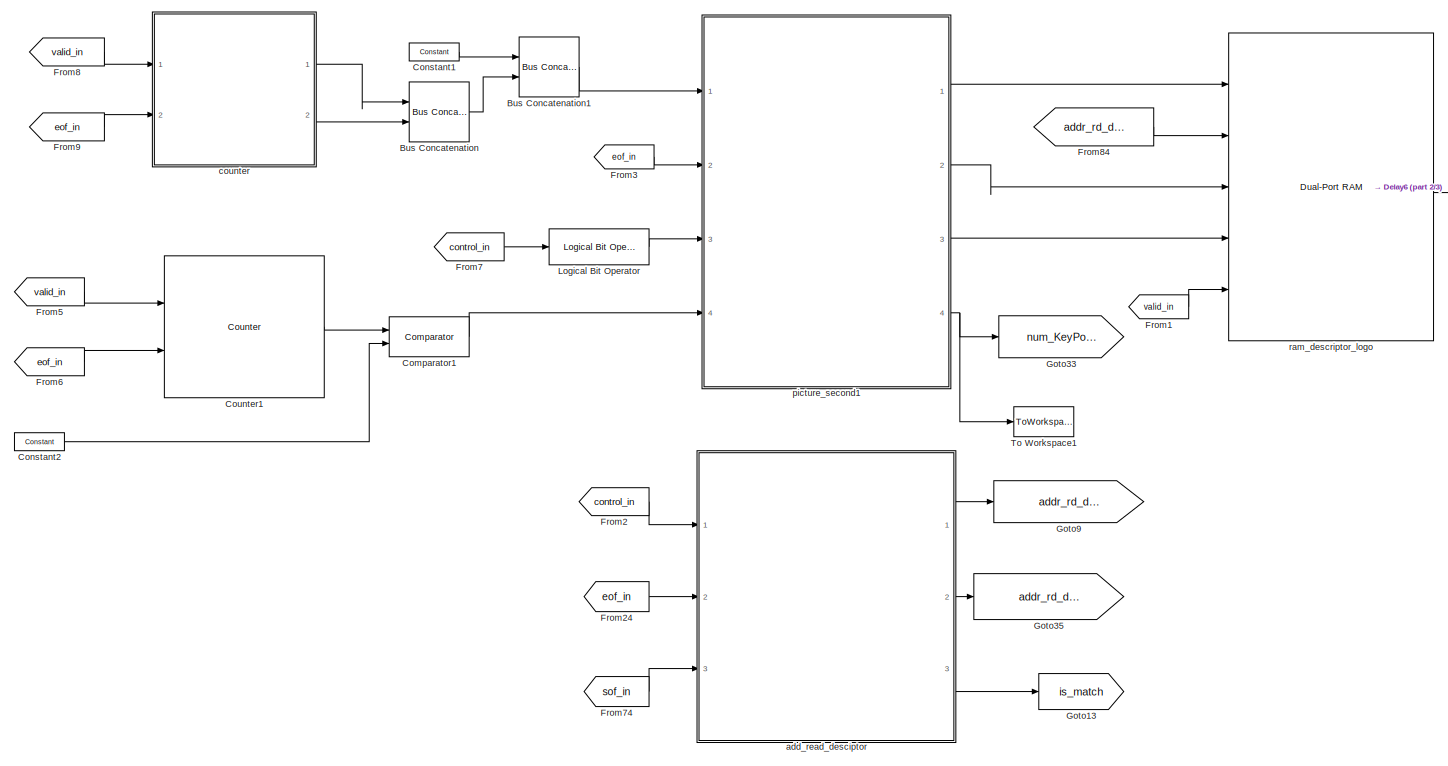
[diagram: root canvas - part 1/3, center side, full height]
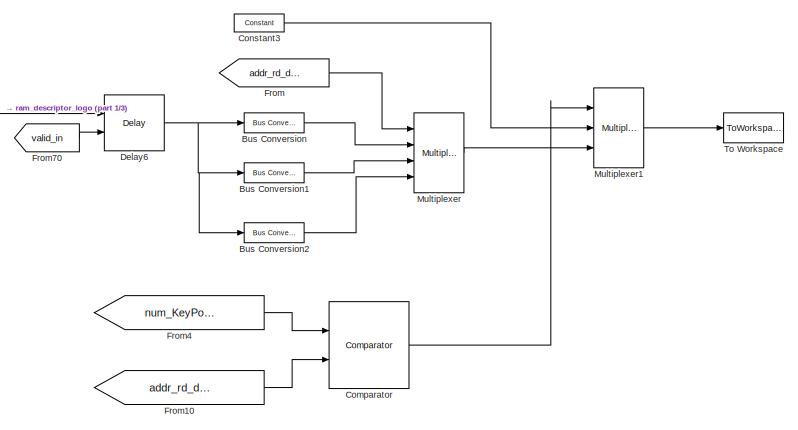
[diagram: root canvas - part 2/3, middle right region]
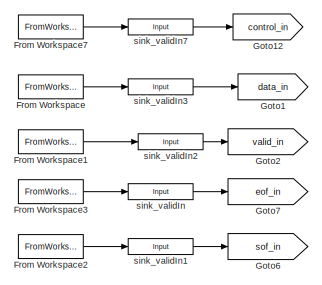
[diagram: root canvas - part 3/3, top left region]
MODEL slx_46d6f0b68bdf
KIND model
CONFIG AbsTol = auto
CONFIG FixedStep = auto
CONFIG InitFcn = %% DSPBuilder Start\nalt_dspbuilder_update_model(bdroot)\n%% DSPBuilder End\n
CONFIG MaxStep = auto
CONFIG MinStep = auto
CONFIG RelTol = 1e-3
CONFIG SampleTimeConstraint = Unconstrained
CONFIG Solver = ode45
CONFIG SolverMode = Auto
CONFIG SolverName = ode45
CONFIG StartTime = 0.0
CONFIG StopTime = 480*640 *2 + 10000
BLOCK [Reference] Bus Concatenation  REF=allblocks_alteradspbuilder2/Bus Concatenation
  Ports = [2, 1]
  SourceBlock = allblocks_alteradspbuilder2/Bus Concatenation
  SourceType = Bus Concatenate AlteraBlockset
  awidth = 32
  bwidth = 32
  isSigned = off
  pipeline_display = 0
BLOCK [Reference] Bus Concatenation1  REF=allblocks_alteradspbuilder2/Bus Concatenation
  Ports = [2, 1]
  SourceBlock = allblocks_alteradspbuilder2/Bus Concatenation
  SourceType = Bus Concatenate AlteraBlockset
  awidth = 32
  bwidth = 64
  isSigned = off
  pipeline_display = 0
BLOCK [Reference] Bus Conversion  REF=allblocks_alteradspbuilder2/Bus Conversion
  BusType = Unsigned Integer
  Ports = [1, 1]
  SourceBlock = allblocks_alteradspbuilder2/Bus Conversion
  SourceType = Bus Conversion AlteraBlockset
  bitToConnectToOutputLSB = 64
  bwl = 32
  bwr = 1
  ibwl = 96
  ibwr = 1
  pipeline_display = 0
  round = off
  saturate = off
BLOCK [Reference] Bus Conversion1  REF=allblocks_alteradspbuilder2/Bus Conversion
  BusType = Unsigned Integer
  Ports = [1, 1]
  SourceBlock = allblocks_alteradspbuilder2/Bus Conversion
  SourceType = Bus Conversion AlteraBlockset
  bitToConnectToOutputLSB = 32
  bwl = 32
  bwr = 1
  ibwl = 96
  ibwr = 1
  pipeline_display = 0
  round = off
  saturate = off
BLOCK [Reference] Bus Conversion2  REF=allblocks_alteradspbuilder2/Bus Conversion
  BusType = Unsigned Integer
  Ports = [1, 1]
  SourceBlock = allblocks_alteradspbuilder2/Bus Conversion
  SourceType = Bus Conversion AlteraBlockset
  bitToConnectToOutputLSB = 0
  bwl = 32
  bwr = 1
  ibwl = 96
  ibwr = 1
  pipeline_display = 0
  round = off
  saturate = off
BLOCK [Reference] Comparator  REF=allblocks_alteradspbuilder2/Comparator
  Ports = [2, 1]
  SourceBlock = allblocks_alteradspbuilder2/Comparator
  SourceType = Comparator AlteraBlockset
  allowFloatingPointOverride = on
  direction = a >= b
  logFile = <userpath>\Desktop\final_sift_fpga\tb_Ram_des\Ram%5Fdes_Comparator.fixedpointlog
  logOutputs = off
  pipeline_display = 0
BLOCK [Reference] Comparator1  REF=allblocks_alteradspbuilder2/Comparator
  Ports = [2, 1]
  SourceBlock = allblocks_alteradspbuilder2/Comparator
  SourceType = Comparator AlteraBlockset
  allowFloatingPointOverride = on
  direction = a == b
  logFile = <userpath>\Desktop\final_sift_fpga\tb_Ram_des\Ram%5Fdes_Comparator1.fixedpointlog
  logOutputs = off
  pipeline_display = 0
BLOCK [Reference] Constant1  REF=allblocks_alteradspbuilder2/Constant
  BusType = Unsigned Integer
  Ports = [0, 1]
  SourceBlock = allblocks_alteradspbuilder2/Constant
  SourceType = Constant AlteraBlockset
  SpecifyClock = off
  allowFloatingPointOverride = on
  bwl = 32
  bwr = 0
  logFile = <userpath>\Desktop\final_sift_fpga\tb_Ram_des\Ram%5Fdes_Constant1.fixedpointlog
  logOutputs = off
  mask_cst = 1998
  roundMode = Truncate
  satMode = Wrap
BLOCK [Reference] Constant2  REF=allblocks_alteradspbuilder2/Constant
  BusType = Unsigned Integer
  Ports = [0, 1]
  SourceBlock = allblocks_alteradspbuilder2/Constant
  SourceType = Constant AlteraBlockset
  SpecifyClock = off
  allowFloatingPointOverride = on
  bwl = 20
  bwr = 0
  logFile = <userpath>\Desktop\final_sift_fpga\tb_Ram_des\Ram%5Fdes_Constant2.fixedpointlog
  logOutputs = off
  mask_cst = 9999
  roundMode = Truncate
  satMode = Wrap
BLOCK [Reference] Constant3  REF=allblocks_alteradspbuilder2/Constant
  BusType = Unsigned Integer
  Ports = [0, 1]
  SourceBlock = allblocks_alteradspbuilder2/Constant
  SourceType = Constant AlteraBlockset
  SpecifyClock = off
  allowFloatingPointOverride = on
  bwl = 32
  bwr = 0
  logFile = <userpath>\Desktop\final_sift_fpga\tb_Ram_des\Ram%5Fdes_Constant3.fixedpointlog
  logOutputs = off
  mask_cst = 0
  roundMode = Truncate
  satMode = Wrap
BLOCK [Reference] Counter1  REF=allblocks_alteradspbuilder2/Counter
  BusType = Unsigned Integer
  Ports = [2, 1]
  SourceBlock = allblocks_alteradspbuilder2/Counter
  SourceType = Counter AlteraBlockset
  SpecifyClock = off
  bwl = 20
  bwr = 0
  direction = Increment
  modulo = 10000
  pipeline_display = 1
  svalue = 1
  use_clk_ena = off
  use_ena = on
  use_modulo = on
  use_sclr = on
  use_sload = off
  use_sset = off
BLOCK [Reference] Delay6  REF=allblocks_alteradspbuilder2/Delay
  ClockPhase = 1
  Ports = [2, 1]
  SourceBlock = allblocks_alteradspbuilder2/Delay
  SourceType = Delay AlteraBlockset
  allowFloatingPointOverride = on
  logFile = <userpath>\Desktop\final_sift_fpga\tb_Ram_des\Ram%5Fdes_Delay6.fixedpointlog
  logOutputs = off
  pipeline = 1
  pipeline_display = 1
  reset_value = 1
  use_ena = on
  use_init = off
  use_sclr = off
BLOCK [From] From
  GotoTag = addr_rd_des_logo
BLOCK [FromWorkspace] From Workspace
  SampleTime = 0
  VariableName = pixel_in
  ZeroCross = on
BLOCK [FromWorkspace] From Workspace1
  SampleTime = 0
  VariableName = valid_in
  ZeroCross = on
BLOCK [FromWorkspace] From Workspace2
  SampleTime = 0
  VariableName = sof_in
  ZeroCross = on
BLOCK [FromWorkspace] From Workspace3
  SampleTime = 0
  VariableName = eof_in
  ZeroCross = on
BLOCK [FromWorkspace] From Workspace7
  SampleTime = 0
  VariableName = control_in
  ZeroCross = on
BLOCK [From] From1
  GotoTag = valid_in
BLOCK [From] From10
  GotoTag = addr_rd_des
BLOCK [From] From2
  GotoTag = control_in
BLOCK [From] From24
  GotoTag = eof_in
BLOCK [From] From3
  GotoTag = eof_in
BLOCK [From] From4
  GotoTag = num_KeyPoint_logo
BLOCK [From] From5
  GotoTag = valid_in
BLOCK [From] From6
  GotoTag = eof_in
BLOCK [From] From7
  GotoTag = control_in
BLOCK [From] From70
  GotoTag = valid_in
BLOCK [From] From74
  GotoTag = sof_in
BLOCK [From] From8
  GotoTag = valid_in
BLOCK [From] From84
  GotoTag = addr_rd_des
BLOCK [From] From9
  GotoTag = eof_in
BLOCK [Goto] Goto1
  GotoTag = data_in
BLOCK [Goto] Goto12
  GotoTag = control_in
BLOCK [Goto] Goto13
  GotoTag = is_match
BLOCK [Goto] Goto2
  GotoTag = valid_in
BLOCK [Goto] Goto33
  GotoTag = num_KeyPoint_logo
BLOCK [Goto] Goto35
  GotoTag = addr_rd_des_logo
BLOCK [Goto] Goto6
  GotoTag = sof_in
BLOCK [Goto] Goto7
  GotoTag = eof_in
BLOCK [Goto] Goto9
  GotoTag = addr_rd_des
BLOCK [Reference] Logical Bit Operator  REF=allblocks_alteradspbuilder2/Logical Bit Operator
  LogicalOperator = NOT
  Ports = [1, 1]
  SourceBlock = allblocks_alteradspbuilder2/Logical Bit Operator
  SourceType = Logical Bit Operator AlteraBlockset
  pipeline_display = 0
  user_inputs = 2
BLOCK [Reference] Multiplexer  REF=allblocks_alteradspbuilder2/Multiplexer
  Ports = [4, 1]
  SourceBlock = allblocks_alteradspbuilder2/Multiplexer
  SourceType = Multiplexer AlteraBlockset
  allowFloatingPointOverride = on
  logFile = <userpath>\Desktop\final_sift_fpga\tb_Ram_des\Ram%5Fdes_Multiplexer.fixedpointlog
  logOutputs = off
  numInputs = 3
  oneHot = off
  pipeline = 0
  pipeline_display = 0
  use_aclr = off
  use_ena = off
BLOCK [Reference] Multiplexer1  REF=allblocks_alteradspbuilder2/Multiplexer
  Ports = [3, 1]
  SourceBlock = allblocks_alteradspbuilder2/Multiplexer
  SourceType = Multiplexer AlteraBlockset
  allowFloatingPointOverride = on
  logFile = <userpath>\Desktop\final_sift_fpga\tb_Ram_des\Ram%5Fdes_Multiplexer1.fixedpointlog
  logOutputs = off
  numInputs = 2
  oneHot = off
  pipeline = 0
  pipeline_display = 0
  use_aclr = off
  use_ena = off
BLOCK [ToWorkspace] To Workspace
  FixptAsFi = on
  MaxDataPoints = inf
  Ports = [1]
  SampleTime = -1
  Save2DSignal = 3-D array (concatenate along third dimension)
  SaveFormat = Timeseries
  VariableName = des_out
BLOCK [ToWorkspace] To Workspace1
  FixptAsFi = on
  MaxDataPoints = inf
  Ports = [1]
  SampleTime = -1
  Save2DSignal = 3-D array (concatenate along third dimension)
  SaveFormat = Timeseries
  VariableName = num_keypoint
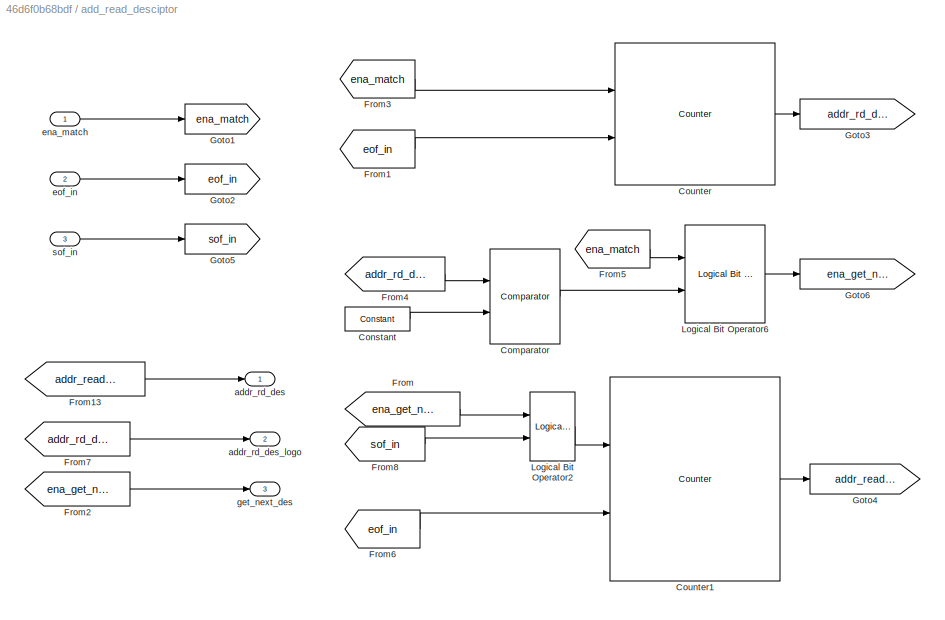
BLOCK [SubSystem] add_read_desciptor
  Ports = [3, 3]
  RequestExecContextInheritance = off
BLOCK [Reference] add_read_desciptor/Comparator  REF=allblocks_alteradspbuilder2/Comparator
  Ports = [2, 1]
  SourceBlock = allblocks_alteradspbuilder2/Comparator
  SourceType = Comparator AlteraBlockset
  allowFloatingPointOverride = on
  direction = a == b
  logFile = <userpath>\Desktop\final_sift_fpga\tb_Ram_des\Ram%5Fdes_add%5Fread%5Fdesciptor_Comparator.fixedpointlog
  logOutputs = off
  pipeline_display = 0
BLOCK [Reference] add_read_desciptor/Constant  REF=allblocks_alteradspbuilder2/Constant
  BusType = Unsigned Integer
  Ports = [0, 1]
  SourceBlock = allblocks_alteradspbuilder2/Constant
  SourceType = Constant AlteraBlockset
  SpecifyClock = off
  allowFloatingPointOverride = on
  bwl = 2
  bwr = 0
  logFile = <userpath>\Desktop\final_sift_fpga\tb_Ram_des\Ram%5Fdes_add%5Fread%5Fdesciptor_Constant.fixedpointlog
  logOutputs = off
  mask_cst = 2
  roundMode = Truncate
  satMode = Wrap
BLOCK [Reference] add_read_desciptor/Counter  REF=allblocks_alteradspbuilder2/Counter
  BusType = Unsigned Integer
  Ports = [2, 1]
  SourceBlock = allblocks_alteradspbuilder2/Counter
  SourceType = Counter AlteraBlockset
  SpecifyClock = off
  bwl = 2
  bwr = 0
  direction = Increment
  modulo = 3
  pipeline_display = 1
  svalue = 1
  use_clk_ena = off
  use_ena = on
  use_modulo = on
  use_sclr = on
  use_sload = off
  use_sset = off
BLOCK [Reference] add_read_desciptor/Counter1  REF=allblocks_alteradspbuilder2/Counter
  BusType = Unsigned Integer
  Ports = [2, 1]
  SourceBlock = allblocks_alteradspbuilder2/Counter
  SourceType = Counter AlteraBlockset
  SpecifyClock = off
  bwl = 7
  bwr = 0
  direction = Increment
  modulo = 100
  pipeline_display = 1
  svalue = 0
  use_clk_ena = off
  use_ena = on
  use_modulo = on
  use_sclr = on
  use_sload = off
  use_sset = off
BLOCK [From] add_read_desciptor/From
  GotoTag = ena_get_next_addr
BLOCK [From] add_read_desciptor/From1
  GotoTag = eof_in
BLOCK [From] add_read_desciptor/From13
  GotoTag = addr_read_des
BLOCK [From] add_read_desciptor/From2
  GotoTag = ena_get_next_addr
BLOCK [From] add_read_desciptor/From3
  GotoTag = ena_match
BLOCK [From] add_read_desciptor/From4
  GotoTag = addr_rd_des_logo
BLOCK [From] add_read_desciptor/From5
  GotoTag = ena_match
BLOCK [From] add_read_desciptor/From6
  GotoTag = eof_in
BLOCK [From] add_read_desciptor/From7
  GotoTag = addr_rd_des_logo
BLOCK [From] add_read_desciptor/From8
  GotoTag = sof_in
BLOCK [Goto] add_read_desciptor/Goto1
  GotoTag = ena_match
BLOCK [Goto] add_read_desciptor/Goto2
  GotoTag = eof_in
BLOCK [Goto] add_read_desciptor/Goto3
  GotoTag = addr_rd_des_logo
BLOCK [Goto] add_read_desciptor/Goto4
  GotoTag = addr_read_des
BLOCK [Goto] add_read_desciptor/Goto5
  GotoTag = sof_in
BLOCK [Goto] add_read_desciptor/Goto6
  GotoTag = ena_get_next_addr
BLOCK [Reference] add_read_desciptor/Logical Bit Operator2  REF=allblocks_alteradspbuilder2/Logical Bit Operator
  LogicalOperator = OR
  Ports = [2, 1]
  SourceBlock = allblocks_alteradspbuilder2/Logical Bit Operator
  SourceType = Logical Bit Operator AlteraBlockset
  pipeline_display = 0
  user_inputs = 2
BLOCK [Reference] add_read_desciptor/Logical Bit Operator6  REF=allblocks_alteradspbuilder2/Logical Bit Operator
  LogicalOperator = AND
  Ports = [2, 1]
  SourceBlock = allblocks_alteradspbuilder2/Logical Bit Operator
  SourceType = Logical Bit Operator AlteraBlockset
  pipeline_display = 0
  user_inputs = 2
BLOCK [Outport] add_read_desciptor/addr_rd_des
  IconDisplay = Port number
BLOCK [Outport] add_read_desciptor/addr_rd_des_logo
  IconDisplay = Port number
  Port = 2
BLOCK [Inport] add_read_desciptor/ena_match
  IconDisplay = Port number
BLOCK [Inport] add_read_desciptor/eof_in
  IconDisplay = Port number
  Port = 2
BLOCK [Outport] add_read_desciptor/get_next_des
  IconDisplay = Port number
  Port = 3
BLOCK [Inport] add_read_desciptor/sof_in
  IconDisplay = Port number
  Port = 3
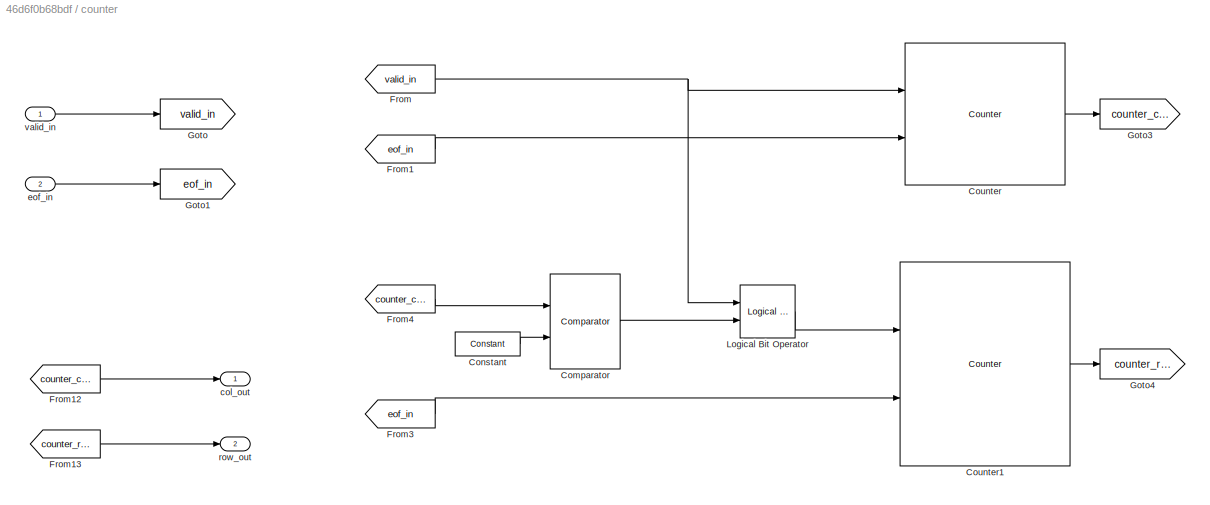
BLOCK [SubSystem] counter
  Ports = [2, 2]
  RequestExecContextInheritance = off
BLOCK [Reference] counter/Comparator  REF=allblocks_alteradspbuilder2/Comparator
  Ports = [2, 1]
  SourceBlock = allblocks_alteradspbuilder2/Comparator
  SourceType = Comparator AlteraBlockset
  allowFloatingPointOverride = on
  direction = a == b
  logFile = <userpath>\Desktop\final_sift_fpga\tb_Ram_des\Ram%5Fdes_counter_Comparator.fixedpointlog
  logOutputs = off
  pipeline_display = 0
BLOCK [Reference] counter/Constant  REF=allblocks_alteradspbuilder2/Constant
  BusType = Unsigned Integer
  Ports = [0, 1]
  SourceBlock = allblocks_alteradspbuilder2/Constant
  SourceType = Constant AlteraBlockset
  SpecifyClock = off
  allowFloatingPointOverride = on
  bwl = 10
  bwr = 0
  logFile = <userpath>\Desktop\final_sift_fpga\tb_Ram_des\Ram%5Fdes_counter_Constant.fixedpointlog
  logOutputs = off
  mask_cst = 639
  roundMode = Truncate
  satMode = Wrap
BLOCK [Reference] counter/Counter  REF=allblocks_alteradspbuilder2/Counter
  BusType = Unsigned Integer
  Ports = [2, 1]
  SourceBlock = allblocks_alteradspbuilder2/Counter
  SourceType = Counter AlteraBlockset
  SpecifyClock = off
  bwl = 10
  bwr = 0
  direction = Increment
  modulo = 640
  pipeline_display = 1
  svalue = 1
  use_clk_ena = off
  use_ena = on
  use_modulo = on
  use_sclr = on
  use_sload = off
  use_sset = off
BLOCK [Reference] counter/Counter1  REF=allblocks_alteradspbuilder2/Counter
  BusType = Unsigned Integer
  Ports = [2, 1]
  SourceBlock = allblocks_alteradspbuilder2/Counter
  SourceType = Counter AlteraBlockset
  SpecifyClock = off
  bwl = 10
  bwr = 0
  direction = Increment
  modulo = 480
  pipeline_display = 1
  svalue = 0
  use_clk_ena = off
  use_ena = on
  use_modulo = on
  use_sclr = on
  use_sload = off
  use_sset = off
BLOCK [From] counter/From
  GotoTag = valid_in
BLOCK [From] counter/From1
  GotoTag = eof_in
BLOCK [From] counter/From12
  GotoTag = counter_col
BLOCK [From] counter/From13
  GotoTag = counter_row
BLOCK [From] counter/From3
  GotoTag = eof_in
BLOCK [From] counter/From4
  GotoTag = counter_col
BLOCK [Goto] counter/Goto
  GotoTag = valid_in
BLOCK [Goto] counter/Goto1
  GotoTag = eof_in
BLOCK [Goto] counter/Goto3
  GotoTag = counter_col
BLOCK [Goto] counter/Goto4
  GotoTag = counter_row
BLOCK [Reference] counter/Logical Bit Operator  REF=allblocks_alteradspbuilder2/Logical Bit Operator
  LogicalOperator = AND
  Ports = [2, 1]
  SourceBlock = allblocks_alteradspbuilder2/Logical Bit Operator
  SourceType = Logical Bit Operator AlteraBlockset
  pipeline_display = 0
  user_inputs = 2
BLOCK [Outport] counter/col_out
  IconDisplay = Port number
BLOCK [Inport] counter/eof_in
  IconDisplay = Port number
  Port = 2
BLOCK [Outport] counter/row_out
  IconDisplay = Port number
  Port = 2
BLOCK [Inport] counter/valid_in
  IconDisplay = Port number
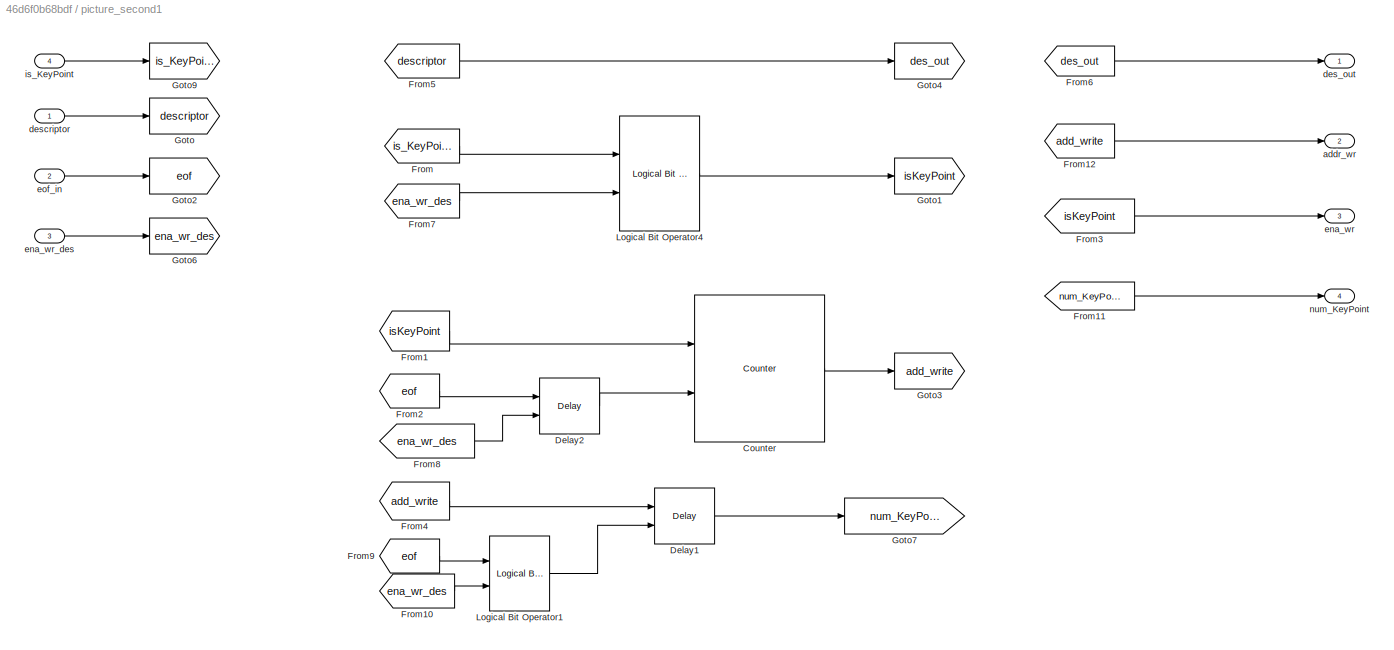
BLOCK [SubSystem] picture_second1
  Ports = [4, 4]
  RequestExecContextInheritance = off
BLOCK [Reference] picture_second1/Counter  REF=allblocks_alteradspbuilder2/Counter
  BusType = Unsigned Integer
  Ports = [2, 1]
  SourceBlock = allblocks_alteradspbuilder2/Counter
  SourceType = Counter AlteraBlockset
  SpecifyClock = off
  bwl = 7
  bwr = 0
  direction = Increment
  modulo = 100
  pipeline_display = 1
  svalue = 1
  use_clk_ena = off
  use_ena = on
  use_modulo = on
  use_sclr = on
  use_sload = off
  use_sset = off
BLOCK [Reference] picture_second1/Delay1  REF=allblocks_alteradspbuilder2/Delay
  ClockPhase = 1
  Ports = [2, 1]
  SourceBlock = allblocks_alteradspbuilder2/Delay
  SourceType = Delay AlteraBlockset
  allowFloatingPointOverride = on
  logFile = <userpath>\Desktop\final_sift_fpga\tb_Ram_des\Ram%5Fdes_picture%5Fsecond1_Delay1.fixedpointlog
  logOutputs = off
  pipeline = 1
  pipeline_display = 1
  reset_value = 1
  use_ena = on
  use_init = off
  use_sclr = off
BLOCK [Reference] picture_second1/Delay2  REF=allblocks_alteradspbuilder2/Delay
  ClockPhase = 1
  Ports = [2, 1]
  SourceBlock = allblocks_alteradspbuilder2/Delay
  SourceType = Delay AlteraBlockset
  allowFloatingPointOverride = on
  logFile = <userpath>\Desktop\final_sift_fpga\tb_Ram_des\Ram%5Fdes_picture%5Fsecond1_Delay2.fixedpointlog
  logOutputs = off
  pipeline = 5
  pipeline_display = 5
  reset_value = 1
  use_ena = on
  use_init = off
  use_sclr = off
BLOCK [From] picture_second1/From
  GotoTag = is_KeyPoint
BLOCK [From] picture_second1/From1
  GotoTag = isKeyPoint
BLOCK [From] picture_second1/From10
  GotoTag = ena_wr_des
BLOCK [From] picture_second1/From11
  GotoTag = num_KeyPoint
BLOCK [From] picture_second1/From12
  GotoTag = add_write
BLOCK [From] picture_second1/From2
  GotoTag = eof
BLOCK [From] picture_second1/From3
  GotoTag = isKeyPoint
BLOCK [From] picture_second1/From4
  GotoTag = add_write
BLOCK [From] picture_second1/From5
  GotoTag = descriptor
BLOCK [From] picture_second1/From6
  GotoTag = des_out
BLOCK [From] picture_second1/From7
  GotoTag = ena_wr_des
BLOCK [From] picture_second1/From8
  GotoTag = ena_wr_des
BLOCK [From] picture_second1/From9
  GotoTag = eof
BLOCK [Goto] picture_second1/Goto
  GotoTag = descriptor
BLOCK [Goto] picture_second1/Goto1
  GotoTag = isKeyPoint
BLOCK [Goto] picture_second1/Goto2
  GotoTag = eof
BLOCK [Goto] picture_second1/Goto3
  GotoTag = add_write
BLOCK [Goto] picture_second1/Goto4
  GotoTag = des_out
BLOCK [Goto] picture_second1/Goto6
  GotoTag = ena_wr_des
BLOCK [Goto] picture_second1/Goto7
  GotoTag = num_KeyPoint
BLOCK [Goto] picture_second1/Goto9
  GotoTag = is_KeyPoint
BLOCK [Reference] picture_second1/Logical Bit Operator1  REF=allblocks_alteradspbuilder2/Logical Bit Operator
  LogicalOperator = AND
  Ports = [2, 1]
  SourceBlock = allblocks_alteradspbuilder2/Logical Bit Operator
  SourceType = Logical Bit Operator AlteraBlockset
  pipeline_display = 0
  user_inputs = 2
BLOCK [Reference] picture_second1/Logical Bit Operator4  REF=allblocks_alteradspbuilder2/Logical Bit Operator
  LogicalOperator = AND
  Ports = [2, 1]
  SourceBlock = allblocks_alteradspbuilder2/Logical Bit Operator
  SourceType = Logical Bit Operator AlteraBlockset
  pipeline_display = 0
  user_inputs = 2
BLOCK [Outport] picture_second1/addr_wr
  IconDisplay = Port number
  Port = 2
BLOCK [Outport] picture_second1/des_out
  IconDisplay = Port number
BLOCK [Inport] picture_second1/descriptor
  IconDisplay = Port number
BLOCK [Outport] picture_second1/ena_wr
  IconDisplay = Port number
  Port = 3
BLOCK [Inport] picture_second1/ena_wr_des
  IconDisplay = Port number
  Port = 3
BLOCK [Inport] picture_second1/eof_in
  IconDisplay = Port number
  Port = 2
BLOCK [Inport] picture_second1/is_KeyPoint
  IconDisplay = Port number
  Port = 4
BLOCK [Outport] picture_second1/num_KeyPoint
  IconDisplay = Port number
  Port = 4
BLOCK [Reference] ram_descriptor_logo  REF=allblocks_alteradspbuilder2/Dual-Port RAM
  BusType = Unsigned Integer
  ClockPhase = 1
  Ports = [5, 1]
  SourceBlock = allblocks_alteradspbuilder2/Dual-Port RAM
  SourceType = Dual-Port RAM AlteraBlockset
  allowFloatingPointOverride = on
  bwl = 96
  bwr = 0
  dont_care = on
  init_array = [0:1:15]
  init_file = input.hex
  initialization = Blank
  logFile = <userpath>\Desktop\final_sift_fpga\tb_Ram_des\Ram%5Fdes_ram%5Fdescriptor%5Flogo.fixedpointlog
  logOutputs = off
  memory_type = AUTO
  numwords = 100
  pipeline_display = 2
  ram_type = DualRAM
  register_outputs = on
  use_ena = on
BLOCK [Reference] sink_validIn  REF=allblocks_alteradspbuilder2/Input
  BusType = Single Bit
  PORTTYPE = Input
  Ports = [1, 1]
  SourceBlock = allblocks_alteradspbuilder2/Input
  SourceType = Input AlteraBlockset
  SpecifyClock = off
  allowFloatingPointOverride = on
  bwl = 8
  bwr = 0
  externalType = Inferred
  iofile = <userpath>\Desktop\final_sift_fpga\tb_Ram_des\Ram%5Fdes_sink%5FvalidIn.salt
  logOutputs = off
BLOCK [Reference] sink_validIn1  REF=allblocks_alteradspbuilder2/Input
  BusType = Single Bit
  PORTTYPE = Input
  Ports = [1, 1]
  SourceBlock = allblocks_alteradspbuilder2/Input
  SourceType = Input AlteraBlockset
  SpecifyClock = off
  allowFloatingPointOverride = on
  bwl = 8
  bwr = 0
  externalType = Inferred
  iofile = <userpath>\Desktop\final_sift_fpga\tb_Ram_des\Ram%5Fdes_sink%5FvalidIn1.salt
  logOutputs = off
BLOCK [Reference] sink_validIn2  REF=allblocks_alteradspbuilder2/Input
  BusType = Single Bit
  PORTTYPE = Input
  Ports = [1, 1]
  SourceBlock = allblocks_alteradspbuilder2/Input
  SourceType = Input AlteraBlockset
  SpecifyClock = off
  allowFloatingPointOverride = on
  bwl = 8
  bwr = 0
  externalType = Inferred
  iofile = <userpath>\Desktop\final_sift_fpga\tb_Ram_des\Ram%5Fdes_sink%5FvalidIn2.salt
  logOutputs = off
BLOCK [Reference] sink_validIn3  REF=allblocks_alteradspbuilder2/Input
  BusType = Unsigned Integer
  PORTTYPE = Input
  Ports = [1, 1]
  SourceBlock = allblocks_alteradspbuilder2/Input
  SourceType = Input AlteraBlockset
  SpecifyClock = off
  allowFloatingPointOverride = on
  bwl = 8
  bwr = 0
  externalType = Inferred
  iofile = <userpath>\Desktop\final_sift_fpga\tb_Ram_des\Ram%5Fdes_sink%5FvalidIn3.salt
  logOutputs = off
BLOCK [Reference] sink_validIn7  REF=allblocks_alteradspbuilder2/Input
  BusType = Single Bit
  PORTTYPE = Input
  Ports = [1, 1]
  SourceBlock = allblocks_alteradspbuilder2/Input
  SourceType = Input AlteraBlockset
  SpecifyClock = off
  allowFloatingPointOverride = on
  bwl = 18
  bwr = 0
  externalType = Inferred
  iofile = <userpath>\Desktop\final_sift_fpga\tb_Ram_des\Ram%5Fdes_sink%5FvalidIn7.salt
  logOutputs = off
LINE Bus Concatenation1:1 -> picture_second1:1
LINE Bus Concatenation:1 -> Bus Concatenation1:2
LINE Bus Conversion1:1 -> Multiplexer:3
LINE Bus Conversion2:1 -> Multiplexer:4
LINE Bus Conversion:1 -> Multiplexer:2
LINE Comparator1:1 -> picture_second1:4
LINE Comparator:1 -> Multiplexer1:1
LINE Constant1:1 -> Bus Concatenation1:1
LINE Constant2:1 -> Comparator1:2
LINE Constant3:1 -> Multiplexer1:2
LINE Counter1:1 -> Comparator1:1
NET Delay6:1 -> Bus Conversion1:1, Bus Conversion2:1, Bus Conversion:1
LINE From Workspace1:1 -> sink_validIn2:1
LINE From Workspace2:1 -> sink_validIn1:1
LINE From Workspace3:1 -> sink_validIn:1
LINE From Workspace7:1 -> sink_validIn7:1
LINE From Workspace:1 -> sink_validIn3:1
LINE From10:1 -> Comparator:2
LINE From1:1 -> ram_descriptor_logo:5
LINE From24:1 -> add_read_desciptor:2
LINE From2:1 -> add_read_desciptor:1
LINE From3:1 -> picture_second1:2
LINE From4:1 -> Comparator:1
LINE From5:1 -> Counter1:1
LINE From6:1 -> Counter1:2
LINE From70:1 -> Delay6:2
LINE From74:1 -> add_read_desciptor:3
LINE From7:1 -> Logical Bit Operator:1
LINE From84:1 -> ram_descriptor_logo:2
LINE From8:1 -> counter:1
LINE From9:1 -> counter:2
LINE From:1 -> Multiplexer:1
LINE Logical Bit Operator:1 -> picture_second1:3
LINE Multiplexer1:1 -> To Workspace:1
LINE Multiplexer:1 -> Multiplexer1:3
LINE add_read_desciptor/Comparator:1 -> add_read_desciptor/Logical Bit Operator6:2
LINE add_read_desciptor/Constant:1 -> add_read_desciptor/Comparator:2
LINE add_read_desciptor/Counter1:1 -> add_read_desciptor/Goto4:1
LINE add_read_desciptor/Counter:1 -> add_read_desciptor/Goto3:1
LINE add_read_desciptor/From13:1 -> add_read_desciptor/addr_rd_des:1
LINE add_read_desciptor/From1:1 -> add_read_desciptor/Counter:2
LINE add_read_desciptor/From2:1 -> add_read_desciptor/get_next_des:1
LINE add_read_desciptor/From3:1 -> add_read_desciptor/Counter:1
LINE add_read_desciptor/From4:1 -> add_read_desciptor/Comparator:1
LINE add_read_desciptor/From5:1 -> add_read_desciptor/Logical Bit Operator6:1
LINE add_read_desciptor/From6:1 -> add_read_desciptor/Counter1:2
LINE add_read_desciptor/From7:1 -> add_read_desciptor/addr_rd_des_logo:1
LINE add_read_desciptor/From8:1 -> add_read_desciptor/Logical Bit Operator2:2
LINE add_read_desciptor/From:1 -> add_read_desciptor/Logical Bit Operator2:1
LINE add_read_desciptor/Logical Bit Operator2:1 -> add_read_desciptor/Counter1:1
LINE add_read_desciptor/Logical Bit Operator6:1 -> add_read_desciptor/Goto6:1
LINE add_read_desciptor/ena_match:1 -> add_read_desciptor/Goto1:1
LINE add_read_desciptor/eof_in:1 -> add_read_desciptor/Goto2:1
LINE add_read_desciptor/sof_in:1 -> add_read_desciptor/Goto5:1
LINE add_read_desciptor:1 -> Goto9:1
LINE add_read_desciptor:2 -> Goto35:1
LINE add_read_desciptor:3 -> Goto13:1
LINE counter/Comparator:1 -> counter/Logical Bit Operator:2
LINE counter/Constant:1 -> counter/Comparator:2
LINE counter/Counter1:1 -> counter/Goto4:1
LINE counter/Counter:1 -> counter/Goto3:1
LINE counter/From12:1 -> counter/col_out:1
LINE counter/From13:1 -> counter/row_out:1
LINE counter/From1:1 -> counter/Counter:2
LINE counter/From3:1 -> counter/Counter1:2
LINE counter/From4:1 -> counter/Comparator:1
NET counter/From:1 -> counter/Counter:1, counter/Logical Bit Operator:1
LINE counter/Logical Bit Operator:1 -> counter/Counter1:1
LINE counter/eof_in:1 -> counter/Goto1:1
LINE counter/valid_in:1 -> counter/Goto:1
LINE counter:1 -> Bus Concatenation:1
LINE counter:2 -> Bus Concatenation:2
LINE picture_second1/Counter:1 -> picture_second1/Goto3:1
LINE picture_second1/Delay1:1 -> picture_second1/Goto7:1
LINE picture_second1/Delay2:1 -> picture_second1/Counter:2
LINE picture_second1/From10:1 -> picture_second1/Logical Bit Operator1:2
LINE picture_second1/From11:1 -> picture_second1/num_KeyPoint:1
LINE picture_second1/From12:1 -> picture_second1/addr_wr:1
LINE picture_second1/From1:1 -> picture_second1/Counter:1
LINE picture_second1/From2:1 -> picture_second1/Delay2:1
LINE picture_second1/From3:1 -> picture_second1/ena_wr:1
LINE picture_second1/From4:1 -> picture_second1/Delay1:1
LINE picture_second1/From5:1 -> picture_second1/Goto4:1
LINE picture_second1/From6:1 -> picture_second1/des_out:1
LINE picture_second1/From7:1 -> picture_second1/Logical Bit Operator4:2
LINE picture_second1/From8:1 -> picture_second1/Delay2:2
LINE picture_second1/From9:1 -> picture_second1/Logical Bit Operator1:1
LINE picture_second1/From:1 -> picture_second1/Logical Bit Operator4:1
LINE picture_second1/Logical Bit Operator1:1 -> picture_second1/Delay1:2
LINE picture_second1/Logical Bit Operator4:1 -> picture_second1/Goto1:1
LINE picture_second1/descriptor:1 -> picture_second1/Goto:1
LINE picture_second1/ena_wr_des:1 -> picture_second1/Goto6:1
LINE picture_second1/eof_in:1 -> picture_second1/Goto2:1
LINE picture_second1/is_KeyPoint:1 -> picture_second1/Goto9:1
LINE picture_second1:1 -> ram_descriptor_logo:1
LINE picture_second1:2 -> ram_descriptor_logo:3
LINE picture_second1:3 -> ram_descriptor_logo:4
NET picture_second1:4 -> Goto33:1, To Workspace1:1
LINE ram_descriptor_logo:1 -> Delay6:1
LINE sink_validIn1:1 -> Goto6:1
LINE sink_validIn2:1 -> Goto2:1
LINE sink_validIn3:1 -> Goto1:1
LINE sink_validIn7:1 -> Goto12:1
LINE sink_validIn:1 -> Goto7:1
note: NET lines group one-source signal fan-out (src -> all destinations, sorted); 1:1 wires keep LINE
